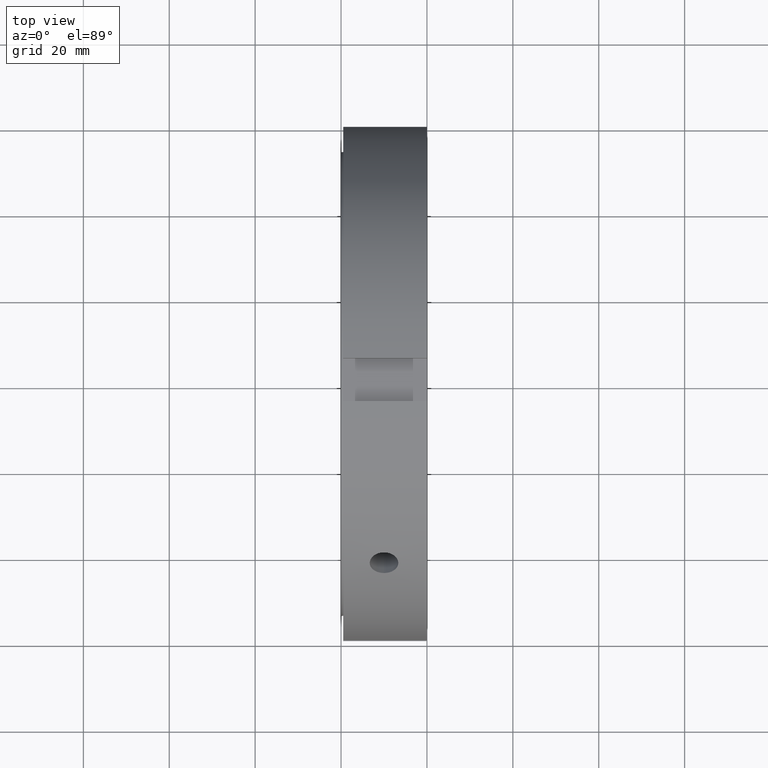
[diagram: clean part render]
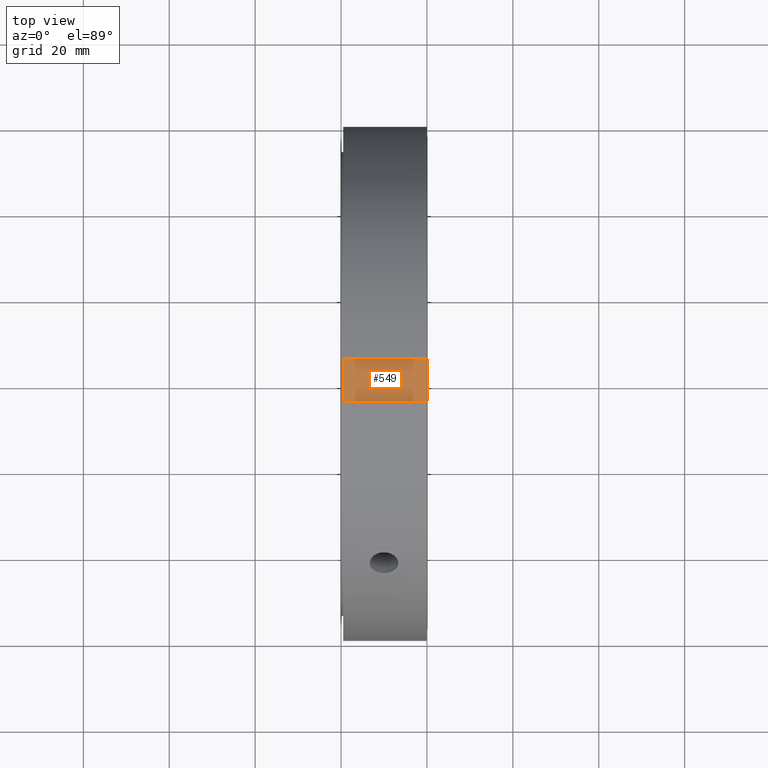
[diagram: same view with one face highlighted and labeled with its STEP entity id]
A machine part, top view. The second image highlights one B-rep face of the part: STEP entity #549.
In plain terms, the highlighted planar face has unit normal (0, 0, -1).
Its self-contained STEP definition (entity closure, byte-faithful):
#453=CARTESIAN_POINT('',(0.499999999999985,5.000000000000001,56.0));
#454=VERTEX_POINT('',#453);
#463=CARTESIAN_POINT('',(19.999999999999989,5.000000000000001,56.0));
#464=VERTEX_POINT('',#463);
#465=CARTESIAN_POINT('',(19.999999999999989,5.000000000000001,56.0));
#466=DIRECTION('',(-1.0,0.0,0.0));
#467=VECTOR('',#466,19.500000000000004);
#468=LINE('',#465,#467);
#469=EDGE_CURVE('',#464,#454,#468,.T.);
#495=CARTESIAN_POINT('',(0.499999999999985,-4.999999999999994,56.0));
#496=VERTEX_POINT('',#495);
#511=CARTESIAN_POINT('',(19.999999999999989,-4.999999999999994,56.0));
#512=VERTEX_POINT('',#511);
#519=CARTESIAN_POINT('',(19.999999999999989,-4.999999999999994,56.0));
#520=DIRECTION('',(-1.0,0.0,0.0));
#521=VECTOR('',#520,19.500000000000004);
#522=LINE('',#519,#521);
#523=EDGE_CURVE('',#512,#496,#522,.T.);
#528=CARTESIAN_POINT('',(19.999999999999989,-4.999999999999994,56.0));
#529=DIRECTION('',(0.0,0.0,-1.0));
#530=DIRECTION('',(0.0,1.0,0.0));
#531=AXIS2_PLACEMENT_3D('',#528,#529,#530);
#532=PLANE('',#531);
#533=CARTESIAN_POINT('',(0.499999999999985,-4.999999999999993,56.0));
#534=DIRECTION('',(0.0,1.0,0.0));
#535=VECTOR('',#534,9.999999999999993);
#536=LINE('',#533,#535);
#537=EDGE_CURVE('',#496,#454,#536,.T.);
#538=ORIENTED_EDGE('',*,*,#537,.F.);
#539=ORIENTED_EDGE('',*,*,#523,.F.);
#540=CARTESIAN_POINT('',(19.999999999999989,5.0,56.0));
#541=DIRECTION('',(0.0,-1.0,0.0));
#542=VECTOR('',#541,9.999999999999996);
#543=LINE('',#540,#542);
#544=EDGE_CURVE('',#464,#512,#543,.T.);
#545=ORIENTED_EDGE('',*,*,#544,.F.);
#546=ORIENTED_EDGE('',*,*,#469,.T.);
#547=EDGE_LOOP('',(#538,#539,#545,#546));
#548=FACE_OUTER_BOUND('',#547,.T.);
#549=ADVANCED_FACE('',(#548),#532,.F.);